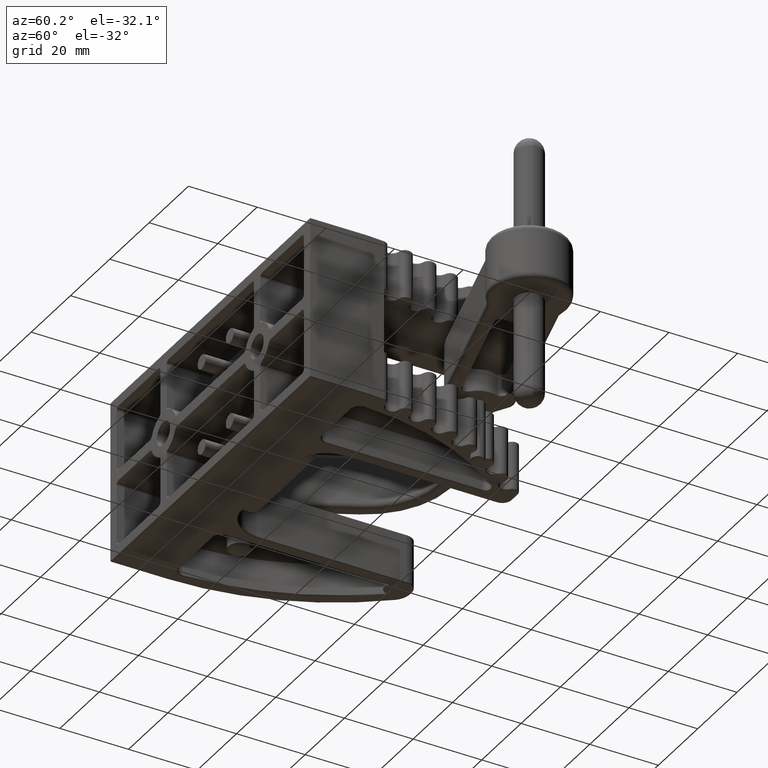
[diagram: clean part render]
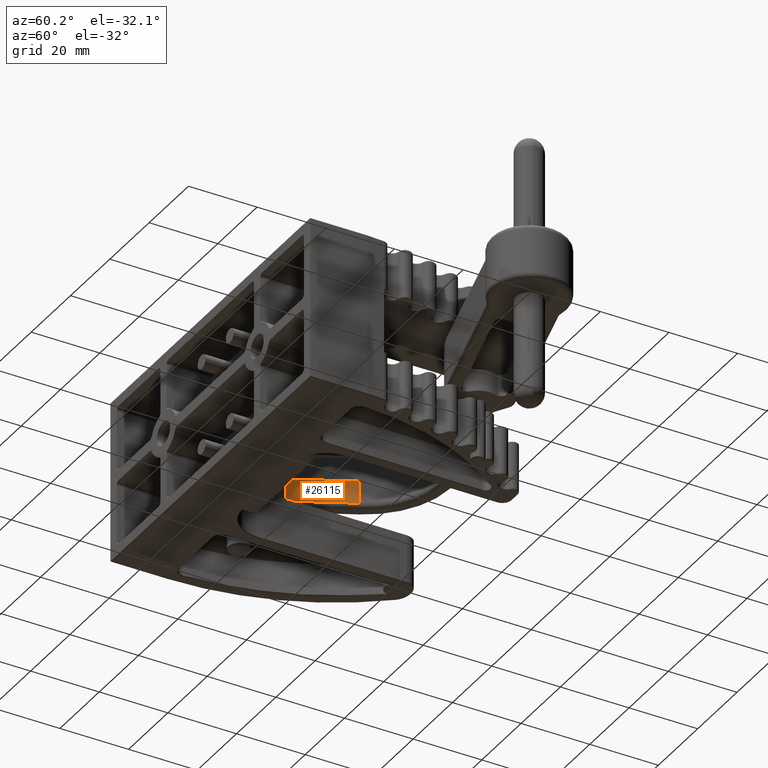
[diagram: same view with one face highlighted and labeled with its STEP entity id]
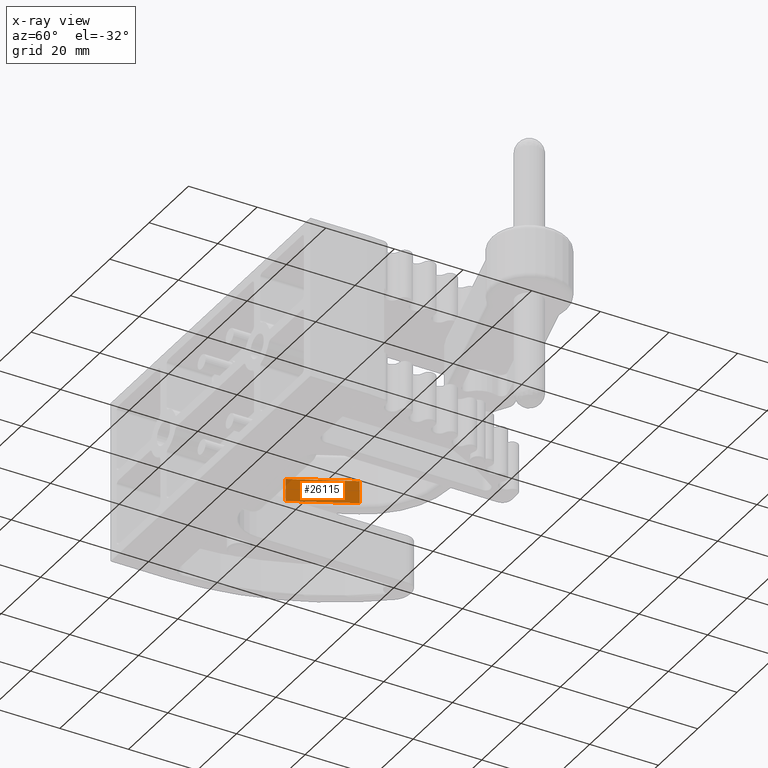
[diagram: x-ray of the same camera — body ghosted, the highlighted face saturated]
A machine part, auxiliary view. The second image highlights one B-rep face of the part: STEP entity #26115.
The next image is the same camera in x-ray: the body ghosted, the highlighted face saturated — about 2% of this face is hidden behind the body in this view.
In plain terms, the highlighted planar face has unit normal (-0.894, 0.4481, -0).
Its self-contained STEP definition (entity closure, byte-faithful):
#591 = ORIENTED_EDGE ( 'NONE', *, *, #16921, .T. ) ;
#2722 = LINE ( 'NONE', #6743, #6823 ) ;
#4375 = CARTESIAN_POINT ( 'NONE',  ( 0.7181599584110964800, -1.168933562693651200, 1.365923996832131600E-016 ) ) ;
#4560 = DIRECTION ( 'NONE',  ( 0.2023567821403770000, 0.9793118669360603200, 2.256949153578784700E-036 ) ) ;
#6449 = FACE_OUTER_BOUND ( 'NONE', #7516, .T. ) ;
#6520 = CARTESIAN_POINT ( 'NONE',  ( 0.8677042951441749100, -0.4452091485833831700, 0.3215000000000000600 ) ) ;
#6743 = CARTESIAN_POINT ( 'NONE',  ( 0.7181599584110964800, -1.168933562693651200, 0.0000000000000000000 ) ) ;
#6823 = VECTOR ( 'NONE', #22704, 39.37007874015748900 ) ;
#7516 = EDGE_LOOP ( 'NONE', ( #17246, #591, #10871, #24231 ) ) ;
#7520 = DIRECTION ( 'NONE',  ( -0.2023567821403770800, -0.9793118669360603200, -2.256949153578785000E-036 ) ) ;
#7567 = CARTESIAN_POINT ( 'NONE',  ( 0.8677042951441749100, -0.4452091485833831700, -0.2589999999999999000 ) ) ;
#7698 = EDGE_CURVE ( 'NONE', #10921, #21733, #2722, .T. ) ;
#7904 = VECTOR ( 'NONE', #4560, 39.37007874015748900 ) ;
#8622 = LINE ( 'NONE', #18240, #7904 ) ;
#9636 = CARTESIAN_POINT ( 'NONE',  ( 0.8677042951441749100, -0.4452091485833831700, 1.365923996832131600E-016 ) ) ;
#9706 = CARTESIAN_POINT ( 'NONE',  ( 0.7181599584110964800, -1.168933562693651200, 0.3215000000000000600 ) ) ;
#10229 = VECTOR ( 'NONE', #24694, 39.37007874015748100 ) ;
#10838 = LINE ( 'NONE', #15839, #22271 ) ;
#10871 = ORIENTED_EDGE ( 'NONE', *, *, #21573, .T. ) ;
#10921 = VERTEX_POINT ( 'NONE', #4375 ) ;
#12264 = VERTEX_POINT ( 'NONE', #17923 ) ;
#12269 = EDGE_CURVE ( 'NONE', #21733, #15857, #16308, .T. ) ;
#14308 = PLANE ( 'NONE',  #27328 ) ;
#15839 = CARTESIAN_POINT ( 'NONE',  ( 0.7181599584110964800, -1.168933562693651200, 0.3215000000000000600 ) ) ;
#15857 = VERTEX_POINT ( 'NONE', #7567 ) ;
#16308 = LINE ( 'NONE', #6520, #10229 ) ;
#16921 = EDGE_CURVE ( 'NONE', #10921, #12264, #10838, .T. ) ;
#17246 = ORIENTED_EDGE ( 'NONE', *, *, #7698, .F. ) ;
#17923 = CARTESIAN_POINT ( 'NONE',  ( 0.7181599584110964800, -1.168933562693651200, -0.2589999999999999000 ) ) ;
#18152 = DIRECTION ( 'NONE',  ( 7.147005652999509400E-036, -4.890056499420717400E-036, -1.000000000000000000 ) ) ;
#18240 = CARTESIAN_POINT ( 'NONE',  ( 0.8677042951441749100, -0.4452091485833831700, -0.2590000000000000100 ) ) ;
#21182 = DIRECTION ( 'NONE',  ( -0.9793118669360604300, 0.2023567821403771100, 7.523163845262618700E-036 ) ) ;
#21573 = EDGE_CURVE ( 'NONE', #12264, #15857, #8622, .T. ) ;
#21733 = VERTEX_POINT ( 'NONE', #9636 ) ;
#22271 = VECTOR ( 'NONE', #18152, 39.37007874015748100 ) ;
#22704 = DIRECTION ( 'NONE',  ( 0.2023567821403770000, 0.9793118669360603200, 2.256949153578784700E-036 ) ) ;
#24231 = ORIENTED_EDGE ( 'NONE', *, *, #12269, .F. ) ;
#24694 = DIRECTION ( 'NONE',  ( 7.147005652999509400E-036, -4.890056499420717400E-036, -1.000000000000000000 ) ) ;
#26115 = ADVANCED_FACE ( 'NONE', ( #6449 ), #14308, .F. ) ;
#27328 = AXIS2_PLACEMENT_3D ( 'NONE', #9706, #21182, #7520 ) ;